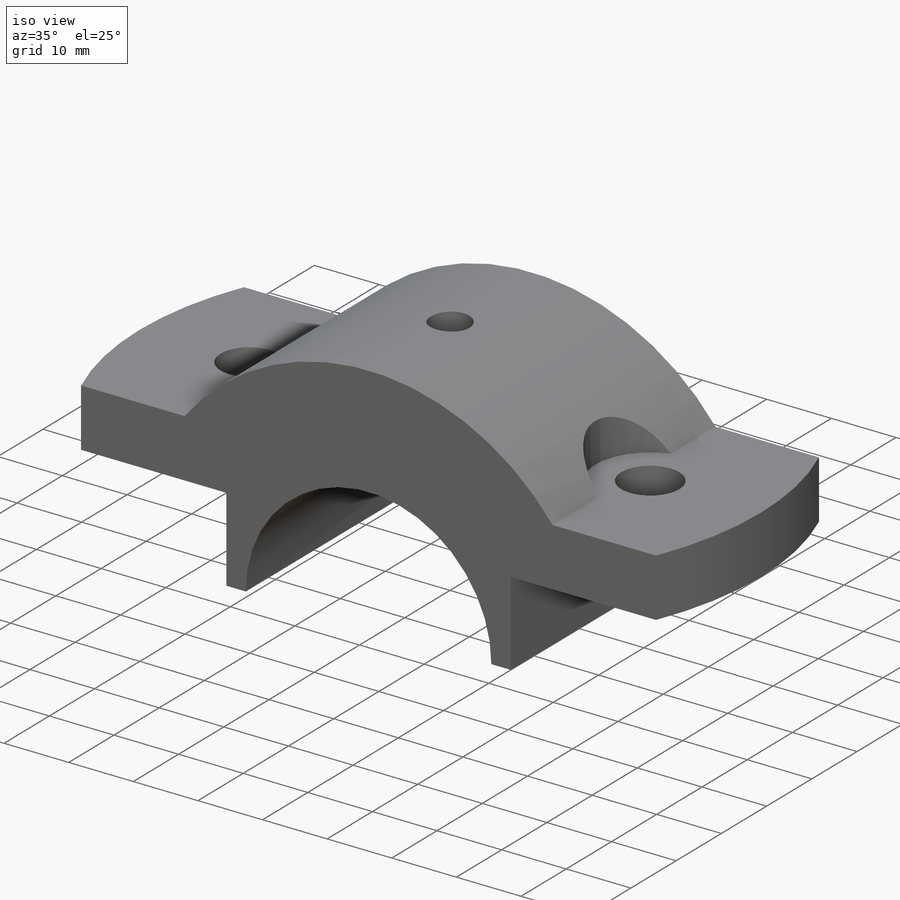
[diagram: iso view]
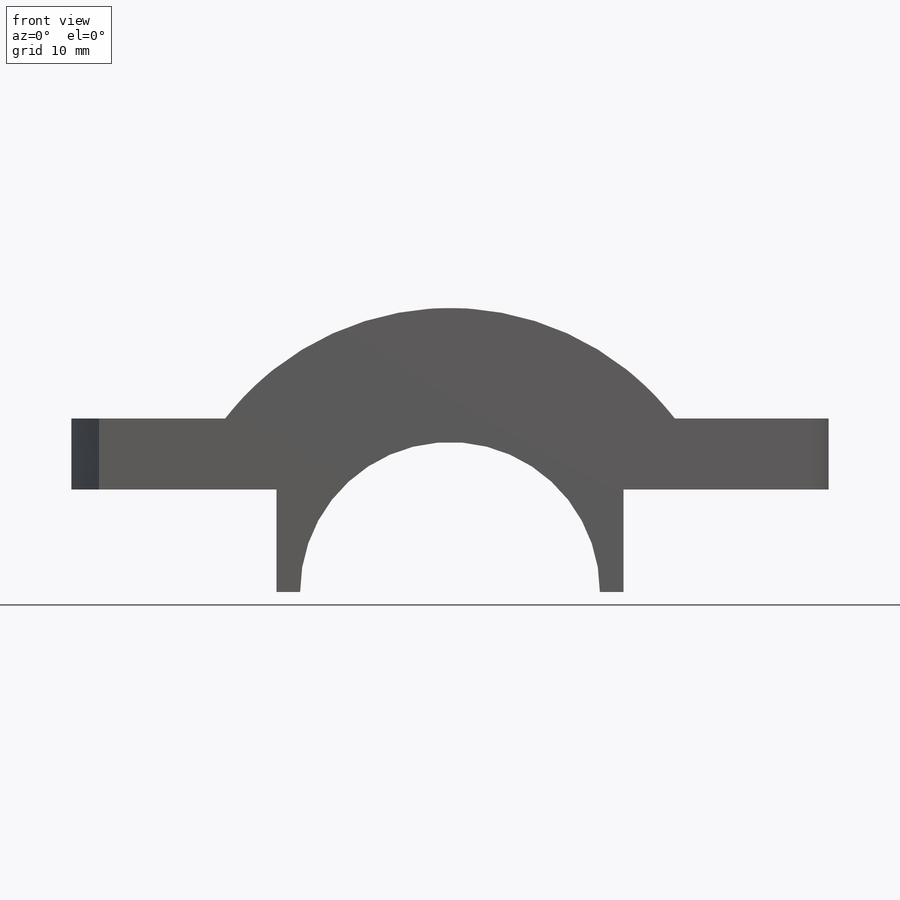
[diagram: front view]
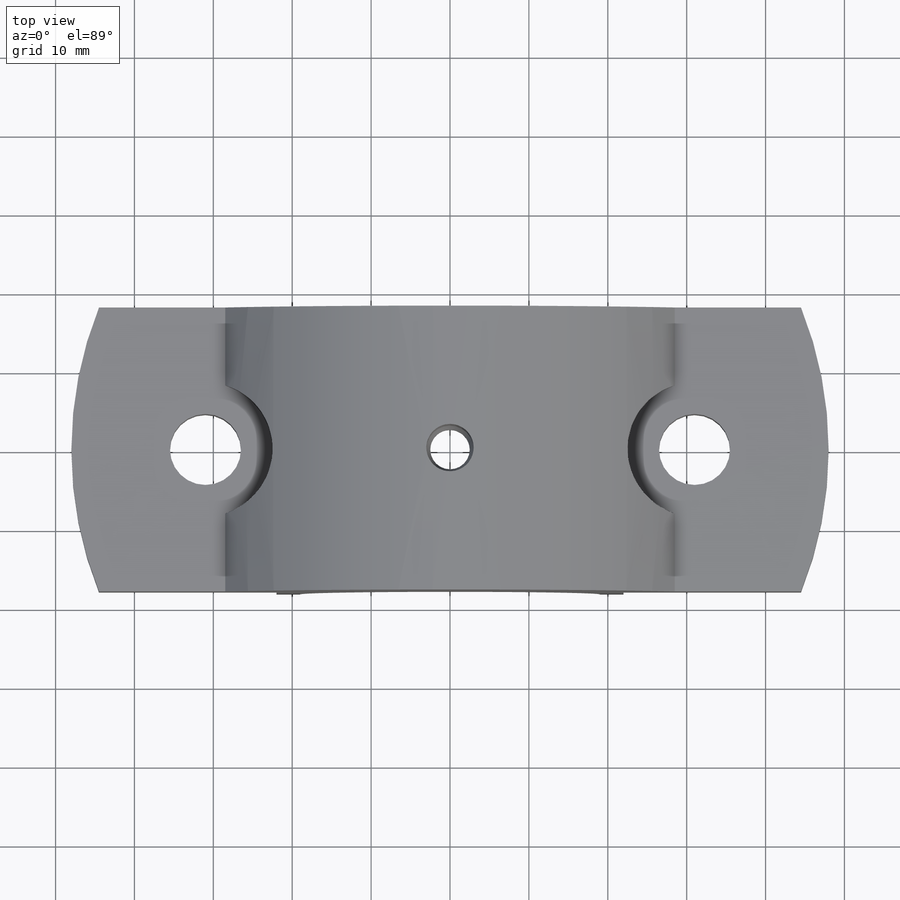
[diagram: top view]
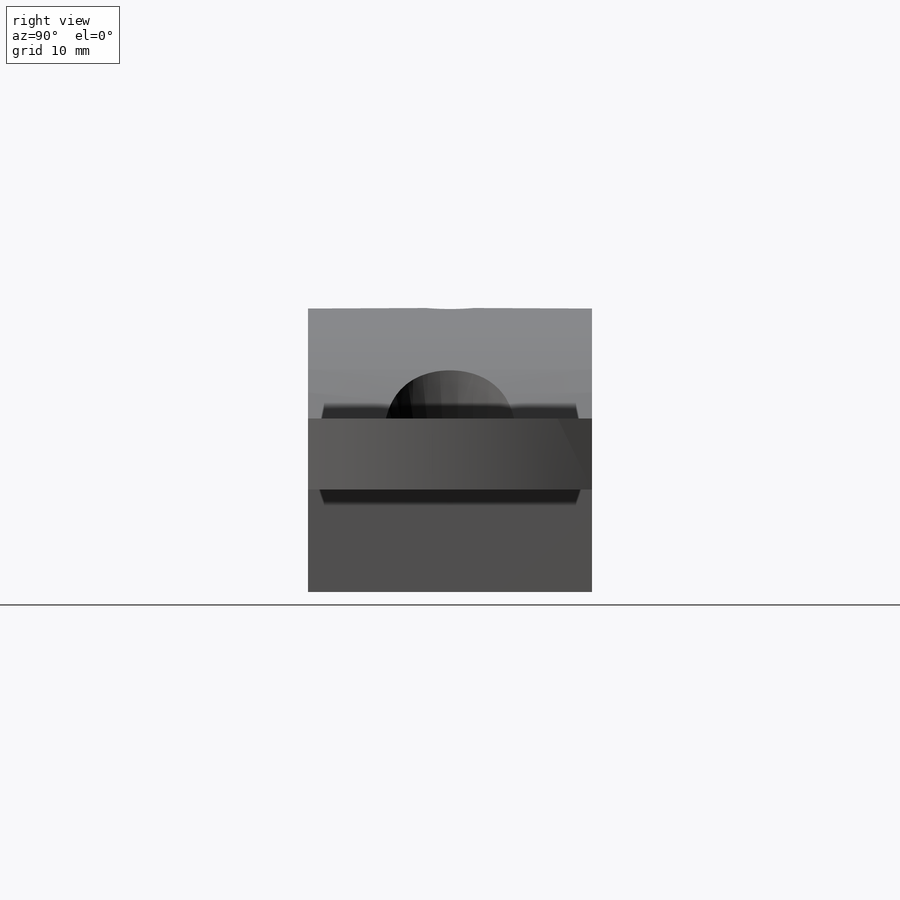
[diagram: right view]
SOLIDWORKS PART (.sldprt)
format: sldprt  version: not decoded by parser v0  size: 207,872 bytes
history: native  units: mm
features: sketch x5, cut_extrude x3, material x1, extrude x1, cut_revolve x1 (+12 scaffold rows collapsed)
feature tree (23):
  scaffold x12  (default folders/planes/origin — collapsed)
  material  "Material <not specified>"
  sketch  "Sketch1"  dims[c1.D1=38.0mm c1.D2=19.0mm c1.D5=9.5mm c2.D1=19.0mm c2.D4=~32.77323mm c2.D2=38.0mm c2.D5=36.0mm c2.D3=6.0mm c3.D4=22.0mm c3.D2=44.0mm c3.D3=6.0mm c4.D4=13.0mm c4.D5=48.0mm c4.D6=9.0mm c4.D2=96.0mm c4.D3=44.0mm]
  extrude  "Boss-Extrude1"  Depth=36mm
  sketch  "Sketch3"  dims[D1=9.0mm D2=31.0mm]
  cut_extrude  "Cut-Extrude1"  Depth=36mm
  sketch  "Sketch4"  dims[D1=31.0mm]
  cut_extrude  "Cut-Extrude2"  Depth=36mm
  sketch  "Sketch5"  dims[D1=31.0mm D2=62.0mm]
  cut_extrude  "Cut-Extrude3"  Depth=36mm
  sketch  "Sketch6"  dims[c1.D1=~1.938613mm c1.D2=2.5mm c1.D3=~5.344455mm c2.D1=3.0mm]
  cut_revolve  "Cut-Revolve1"  Angle=360deg
decode coverage: 10 of 10 modeling features carry decoded parameters
note: ~ marks probable driven/reference dimensions
note: suppression state not decoded; provenance and decode notes live in map.json
